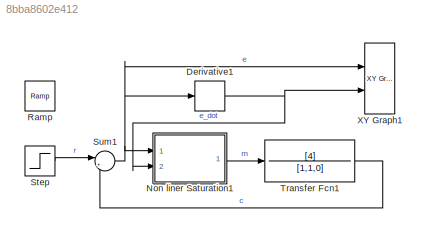
MODEL slx_8bba8602e412
KIND model
CONFIG AbsTol = auto
CONFIG EnableMultiTasking = off
CONFIG FixedStep = auto
CONFIG MaxStep = auto
CONFIG MinStep = auto
CONFIG RelTol = 1e-3
CONFIG SampleTimeConstraint = Unconstrained
CONFIG Solver = VariableStepAuto
CONFIG SolverName = VariableStepAuto
CONFIG StartTime = 0.0
CONFIG StopTime = 500
BLOCK [Derivative] Derivative1
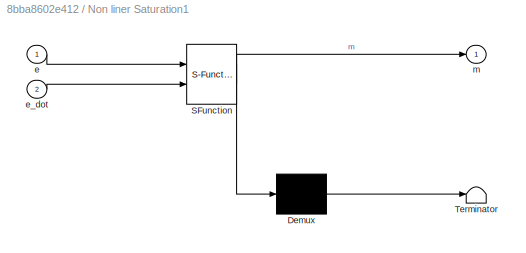
BLOCK [SubSystem] Non liner Saturation1
  ErrorFcn = Stateflow.Translate.translate
  PermitHierarchicalResolution = ExplicitOnly
  Ports = [2, 1]
  RequestExecContextInheritance = off
  SFBlockType = MATLAB Function
  TreatAsAtomicUnit = on
BLOCK [Demux] Non liner Saturation1/ Demux 
  Outputs = 1
  Ports = [1, 1]
BLOCK [S-Function] Non liner Saturation1/ SFunction 
  EnableBusSupport = on
  FunctionName = sf_sfun
  PortCounts = [2 2]
  Ports = [2, 2]
  SFcnIsStateOwnerBlock = off
  SFunctionDeploymentMode = off
  Tag = Stateflow S-Function nonliner_saturation_2 1
BLOCK [Terminator] Non liner Saturation1/ Terminator 
BLOCK [Inport] Non liner Saturation1/e
  IconDisplay = Port number
BLOCK [Inport] Non liner Saturation1/e_dot
  IconDisplay = Port number
  Port = 2
BLOCK [Outport] Non liner Saturation1/m
  IconDisplay = Port number
BLOCK [Reference] Ramp  REF=simulink/Sources/Ramp
  Ports = [0, 1]
  SourceBlock = simulink/Sources/Ramp
  SourceProductBaseCode = SL
  SourceProductName = Simulink
  SourceType = Ramp
BLOCK [Step] Step
  SampleTime = 0
BLOCK [Sum] Sum1
  IconShape = round
  InputSameDT = off
  Inputs = |+-
  OutDataTypeStr = Inherit: Inherit via internal rule
  Ports = [2, 1]
  SaturateOnIntegerOverflow = off
BLOCK [TransferFcn] Transfer Fcn1
  Denominator = [1,1,0]
  Numerator = [4]
BLOCK [Reference] XY Graph1  REF=simulink/Sinks/XY Graph
  Ports = [2]
  SourceBlock = simulink/Sinks/XY Graph
  SourceProductBaseCode = SL
  SourceProductName = Simulink
  SourceType = XY scope.
NET Derivative1:1 -> Non liner Saturation1:2, XY Graph1:2
LINE Non liner Saturation1:1 -> Transfer Fcn1:1
LINE Step:1 -> Sum1:1
NET Sum1:1 -> Derivative1:1, Non liner Saturation1:1, XY Graph1:1
LINE Transfer Fcn1:1 -> Sum1:2
note: NET lines group one-source signal fan-out (src -> all destinations, sorted); 1:1 wires keep LINE
CHART Non liner Saturation1 states=1 transitions=1
  STATE_LABEL 'eML_blk_kernel()'
  STATE_LABEL 'SCRIPT:\nfunction m = fcn(e,e_dot)\nif e_dot >0\n    if e<-0.1\n        m=-0.2;\n    elseif e>0.2\n        m=0.2;\n    else \n        m=0;\n    end\nelse\n    if e<-0.2\n        m=-0.2;\n    elseif e>0.1\n        m=0.2;\n    else \n        m=0;\n    end\nend\nm=m ;'
